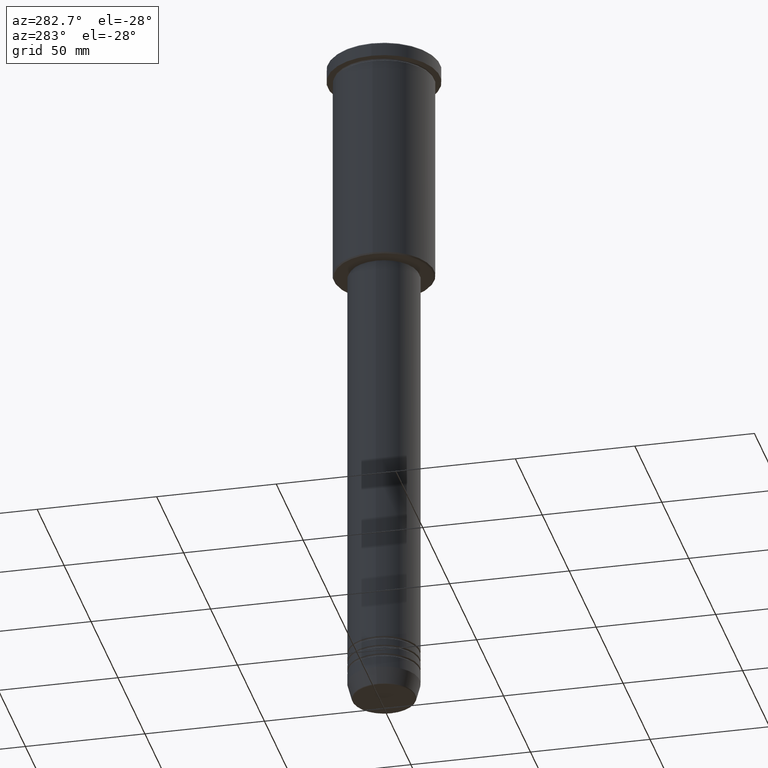
[diagram: clean part render]
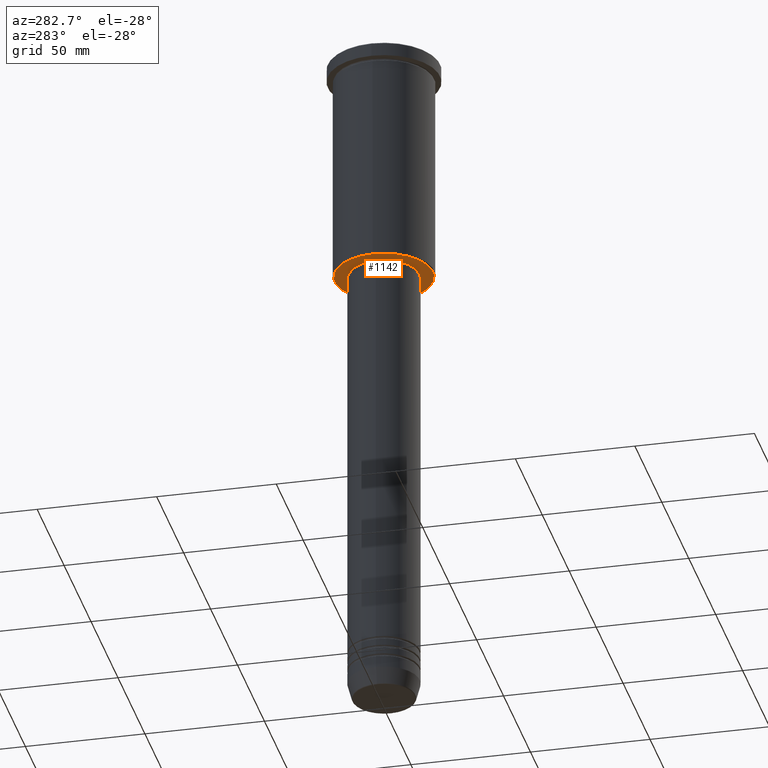
[diagram: same view with one face highlighted and labeled with its STEP entity id]
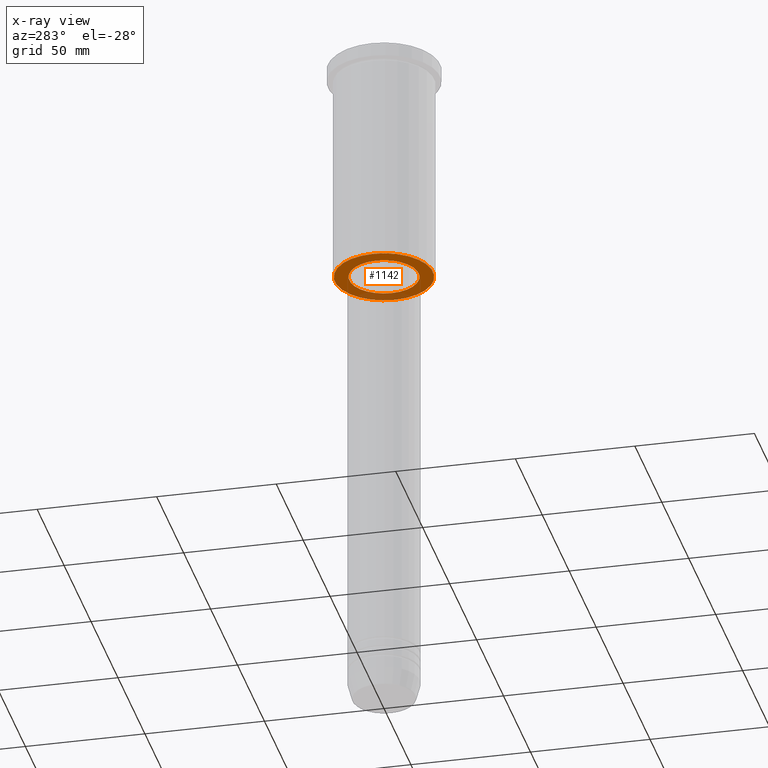
[diagram: x-ray of the same camera — body ghosted, the highlighted face saturated]
A machine part, auxiliary view. The second image highlights one B-rep face of the part: STEP entity #1142.
The next image is the same camera in x-ray: the body ghosted, the highlighted face saturated — about 17% of this face is hidden behind the body in this view.
In plain terms, the highlighted planar face has unit normal (0, 0, -1).
Its self-contained STEP definition (entity closure, byte-faithful):
#33 = ORIENTED_EDGE ( 'NONE', *, *, #983, .T. ) ;
#50 = EDGE_CURVE ( 'NONE', #299, #899, #810, .T. ) ;
#80 = DIRECTION ( 'NONE',  ( 1.000000000000000000, 0.000000000000000000, 0.000000000000000000 ) ) ;
#120 = DIRECTION ( 'NONE',  ( -1.000000000000000000, 0.000000000000000000, 0.000000000000000000 ) ) ;
#149 = CARTESIAN_POINT ( 'NONE',  ( 0.000000000000000000, 0.000000000000000000, -96.00000000000000000 ) ) ;
#180 = FACE_BOUND ( 'NONE', #241, .T. ) ;
#192 = DIRECTION ( 'NONE',  ( 0.000000000000000000, 0.000000000000000000, -1.000000000000000000 ) ) ;
#197 = CARTESIAN_POINT ( 'NONE',  ( 0.000000000000000000, 0.000000000000000000, -96.00000000000001421 ) ) ;
#207 = CARTESIAN_POINT ( 'NONE',  ( -20.50000000000001776, 2.541142108230759057E-15, -96.00000000000001421 ) ) ;
#229 = EDGE_CURVE ( 'NONE', #625, #731, #923, .T. ) ;
#241 = EDGE_LOOP ( 'NONE', ( #288, #33 ) ) ;
#277 = CARTESIAN_POINT ( 'NONE',  ( 0.000000000000000000, 0.000000000000000000, -96.00000000000000000 ) ) ;
#288 = ORIENTED_EDGE ( 'NONE', *, *, #229, .T. ) ;
#299 = VERTEX_POINT ( 'NONE', #806 ) ;
#463 = DIRECTION ( 'NONE',  ( -0.000000000000000000, -0.000000000000000000, 1.000000000000000000 ) ) ;
#484 = AXIS2_PLACEMENT_3D ( 'NONE', #751, #1030, #120 ) ;
#501 = DIRECTION ( 'NONE',  ( -0.000000000000000000, -0.000000000000000000, 1.000000000000000000 ) ) ;
#541 = CARTESIAN_POINT ( 'NONE',  ( 0.000000000000000000, 21.00000000000000000, -96.00000000000001421 ) ) ;
#625 = VERTEX_POINT ( 'NONE', #691 ) ;
#627 = CIRCLE ( 'NONE', #665, 14.49999999999999822 ) ;
#663 = CIRCLE ( 'NONE', #851, 20.50000000000001776 ) ;
#665 = AXIS2_PLACEMENT_3D ( 'NONE', #149, #501, #773 ) ;
#691 = CARTESIAN_POINT ( 'NONE',  ( 14.49999999999999822, 0.000000000000000000, -96.00000000000000000 ) ) ;
#714 = FACE_OUTER_BOUND ( 'NONE', #1155, .T. ) ;
#726 = DIRECTION ( 'NONE',  ( -1.000000000000000000, 0.000000000000000000, -0.000000000000000000 ) ) ;
#731 = VERTEX_POINT ( 'NONE', #1092 ) ;
#751 = CARTESIAN_POINT ( 'NONE',  ( 0.000000000000000000, 0.000000000000000000, -96.00000000000001421 ) ) ;
#773 = DIRECTION ( 'NONE',  ( 1.000000000000000000, 0.000000000000000000, 0.000000000000000000 ) ) ;
#806 = CARTESIAN_POINT ( 'NONE',  ( 20.50000000000001776, 0.000000000000000000, -96.00000000000001421 ) ) ;
#810 = CIRCLE ( 'NONE', #484, 20.50000000000001776 ) ;
#845 = EDGE_CURVE ( 'NONE', #899, #299, #663, .T. ) ;
#851 = AXIS2_PLACEMENT_3D ( 'NONE', #197, #192, #1114 ) ;
#895 = ORIENTED_EDGE ( 'NONE', *, *, #50, .T. ) ;
#899 = VERTEX_POINT ( 'NONE', #207 ) ;
#923 = CIRCLE ( 'NONE', #1076, 14.49999999999999822 ) ;
#973 = PLANE ( 'NONE',  #1007 ) ;
#983 = EDGE_CURVE ( 'NONE', #731, #625, #627, .T. ) ;
#1007 = AXIS2_PLACEMENT_3D ( 'NONE', #541, #1078, #726 ) ;
#1030 = DIRECTION ( 'NONE',  ( 0.000000000000000000, 0.000000000000000000, -1.000000000000000000 ) ) ;
#1076 = AXIS2_PLACEMENT_3D ( 'NONE', #277, #463, #80 ) ;
#1078 = DIRECTION ( 'NONE',  ( 0.000000000000000000, 0.000000000000000000, -1.000000000000000000 ) ) ;
#1092 = CARTESIAN_POINT ( 'NONE',  ( -14.49999999999999822, 1.775737858763662015E-15, -96.00000000000000000 ) ) ;
#1114 = DIRECTION ( 'NONE',  ( -1.000000000000000000, 0.000000000000000000, 0.000000000000000000 ) ) ;
#1142 = ADVANCED_FACE ( 'NONE', ( #714, #180 ), #973, .T. ) ;
#1144 = ORIENTED_EDGE ( 'NONE', *, *, #845, .T. ) ;
#1155 = EDGE_LOOP ( 'NONE', ( #895, #1144 ) ) ;